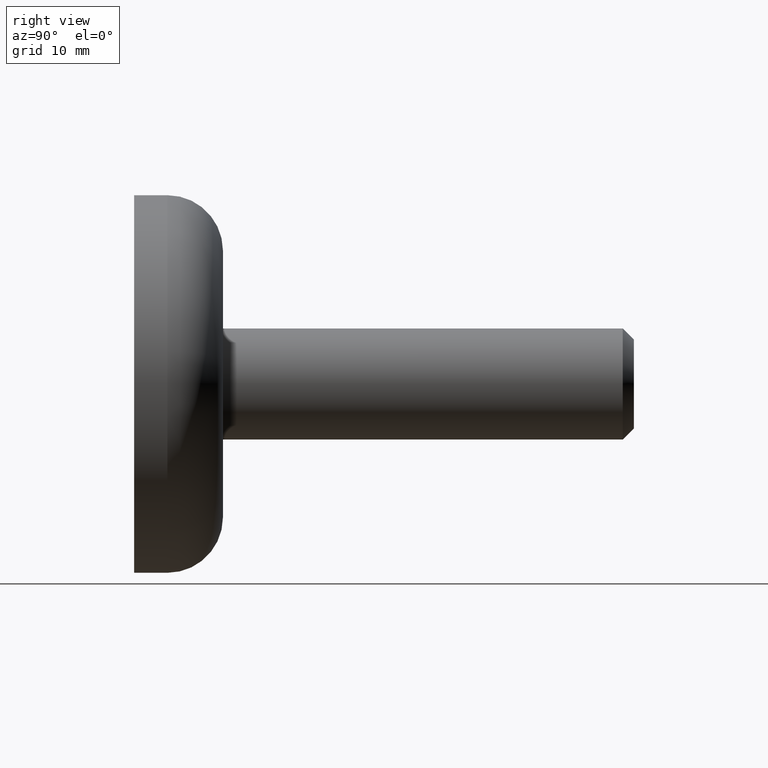
[diagram: clean part render]
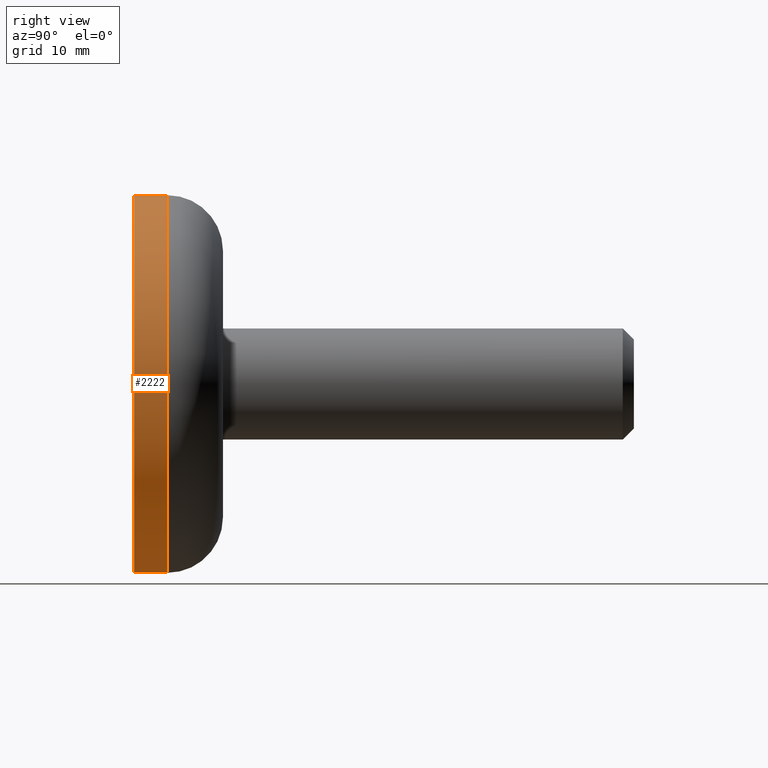
[diagram: same view with one face highlighted and labeled with its STEP entity id]
A machine part, right view. The second image highlights one B-rep face of the part: STEP entity #2222.
In plain terms, the highlighted cylindrical surface (partial cylindrical patch) has radius 17 mm, axis along (-0, -1, -0).
Its self-contained STEP definition (entity closure, byte-faithful):
#896 = ORIENTED_EDGE ( 'NONE', *, *, #7588, .F. ) ;
#1682 = DIRECTION ( 'NONE',  ( -0.000000000000000000, -1.000000000000000000, -0.000000000000000000 ) ) ;
#1792 = EDGE_LOOP ( 'NONE', ( #9883, #2799, #9377, #896 ) ) ;
#1959 = CARTESIAN_POINT ( 'NONE',  ( 0.000000000000000000, 0.000000000000000000, -17.00000000000000000 ) ) ;
#2174 = VECTOR ( 'NONE', #13413, 1000.000000000000000 ) ;
#2222 = ADVANCED_FACE ( 'NONE', ( #10494 ), #9395, .T. ) ;
#2708 = LINE ( 'NONE', #4173, #2174 ) ;
#2799 = ORIENTED_EDGE ( 'NONE', *, *, #5394, .T. ) ;
#3727 = DIRECTION ( 'NONE',  ( -0.000000000000000000, -1.000000000000000000, -0.000000000000000000 ) ) ;
#3896 = DIRECTION ( 'NONE',  ( 0.000000000000000000, 0.000000000000000000, 1.000000000000000000 ) ) ;
#4173 = CARTESIAN_POINT ( 'NONE',  ( 2.081899558550500280E-15, 0.000000000000000000, 17.00000000000000000 ) ) ;
#4195 = EDGE_CURVE ( 'NONE', #13741, #10839, #7962, .T. ) ;
#5320 = DIRECTION ( 'NONE',  ( 0.000000000000000000, 0.000000000000000000, -1.000000000000000000 ) ) ;
#5394 = EDGE_CURVE ( 'NONE', #10839, #5900, #2708, .T. ) ;
#5900 = VERTEX_POINT ( 'NONE', #12033 ) ;
#6160 = AXIS2_PLACEMENT_3D ( 'NONE', #9802, #10840, #3896 ) ;
#6474 = VECTOR ( 'NONE', #9974, 1000.000000000000000 ) ;
#7196 = CARTESIAN_POINT ( 'NONE',  ( 0.000000000000000000, 1.836970198721010336E-17, -17.00000000000000000 ) ) ;
#7588 = EDGE_CURVE ( 'NONE', #13741, #12254, #12068, .T. ) ;
#7945 = AXIS2_PLACEMENT_3D ( 'NONE', #12836, #3727, #10573 ) ;
#7962 = CIRCLE ( 'NONE', #6160, 17.00000000000000000 ) ;
#8152 = CARTESIAN_POINT ( 'NONE',  ( 2.081899558550500280E-15, 2.999999999999998224, 17.00000000000000000 ) ) ;
#8670 = CARTESIAN_POINT ( 'NONE',  ( 0.000000000000000000, 2.999999999999998224, -17.00000000000000000 ) ) ;
#9377 = ORIENTED_EDGE ( 'NONE', *, *, #14832, .F. ) ;
#9395 = CYLINDRICAL_SURFACE ( 'NONE', #7945, 17.00000000000000000 ) ;
#9802 = CARTESIAN_POINT ( 'NONE',  ( 0.000000000000000000, 2.999999999999998224, 0.000000000000000000 ) ) ;
#9883 = ORIENTED_EDGE ( 'NONE', *, *, #4195, .T. ) ;
#9974 = DIRECTION ( 'NONE',  ( -0.000000000000000000, -1.000000000000000000, -0.000000000000000000 ) ) ;
#10494 = FACE_OUTER_BOUND ( 'NONE', #1792, .T. ) ;
#10573 = DIRECTION ( 'NONE',  ( 0.000000000000000000, 0.000000000000000000, -1.000000000000000000 ) ) ;
#10839 = VERTEX_POINT ( 'NONE', #8152 ) ;
#10840 = DIRECTION ( 'NONE',  ( -0.000000000000000000, -1.000000000000000000, -0.000000000000000000 ) ) ;
#12033 = CARTESIAN_POINT ( 'NONE',  ( 2.081899558550500280E-15, 1.836970198721010336E-17, 17.00000000000000000 ) ) ;
#12068 = LINE ( 'NONE', #1959, #6474 ) ;
#12080 = CARTESIAN_POINT ( 'NONE',  ( 0.000000000000000000, 1.836970198721010336E-17, 0.000000000000000000 ) ) ;
#12254 = VERTEX_POINT ( 'NONE', #7196 ) ;
#12836 = CARTESIAN_POINT ( 'NONE',  ( 0.000000000000000000, 0.000000000000000000, 0.000000000000000000 ) ) ;
#12978 = AXIS2_PLACEMENT_3D ( 'NONE', #12080, #1682, #5320 ) ;
#13413 = DIRECTION ( 'NONE',  ( -0.000000000000000000, -1.000000000000000000, -0.000000000000000000 ) ) ;
#13701 = CIRCLE ( 'NONE', #12978, 17.00000000000000000 ) ;
#13741 = VERTEX_POINT ( 'NONE', #8670 ) ;
#14832 = EDGE_CURVE ( 'NONE', #12254, #5900, #13701, .T. ) ;